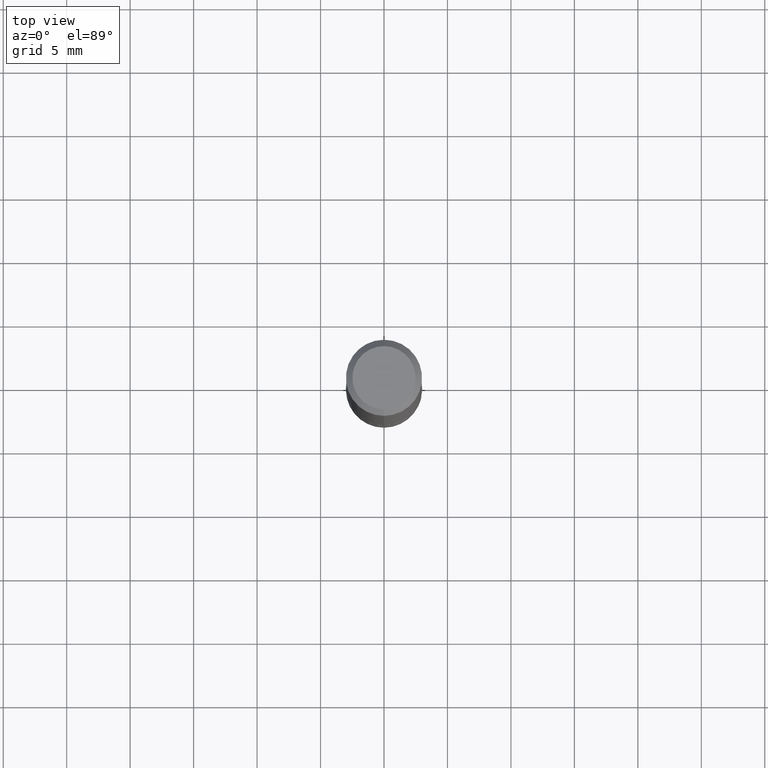
[diagram: clean part render]
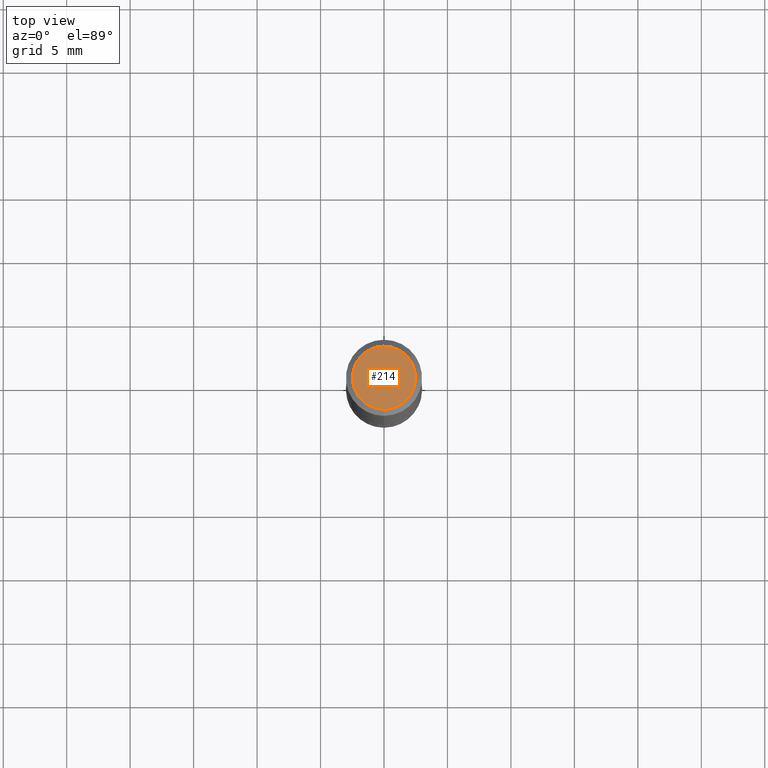
[diagram: same view with one face highlighted and labeled with its STEP entity id]
A machine part, top view. The second image highlights one B-rep face of the part: STEP entity #214.
In plain terms, the highlighted planar face has unit normal (0, -0, -1).
Its self-contained STEP definition (entity closure, byte-faithful):
#6 = EDGE_CURVE ( 'NONE', #373, #116, #262, .T. ) ;
#17 = EDGE_LOOP ( 'NONE', ( #159, #52 ) ) ;
#52 = ORIENTED_EDGE ( 'NONE', *, *, #320, .T. ) ;
#100 = CARTESIAN_POINT ( 'NONE',  ( -1.253201207292542527E-45, 1.789529766643190272E-31, 5.125000209750278552E-17 ) ) ;
#110 = AXIS2_PLACEMENT_3D ( 'NONE', #125, #406, #243 ) ;
#116 = VERTEX_POINT ( 'NONE', #165 ) ;
#125 = CARTESIAN_POINT ( 'NONE',  ( -1.253201207292542527E-45, 1.789529766643190272E-31, 5.125000209750278552E-17 ) ) ;
#159 = ORIENTED_EDGE ( 'NONE', *, *, #6, .T. ) ;
#165 = CARTESIAN_POINT ( 'NONE',  ( -7.416198335591022079E-16, -0.09809999999999997888, 3.937921736543131328E-16 ) ) ;
#197 = AXIS2_PLACEMENT_3D ( 'NONE', #100, #408, #234 ) ;
#214 = ADVANCED_FACE ( 'NONE', ( #410 ), #321, .F. ) ;
#223 = DIRECTION ( 'NONE',  ( 2.445270548298389327E-29, -3.491765255421105394E-15, -1.000000000000000000 ) ) ;
#234 = DIRECTION ( 'NONE',  ( -6.982962677686265922E-15, -1.000000000000000000, 3.491765255421105394E-15 ) ) ;
#243 = DIRECTION ( 'NONE',  ( -6.982962677686265922E-15, -1.000000000000000000, 3.491765255421105394E-15 ) ) ;
#262 = CIRCLE ( 'NONE', #110, 0.09809999999999997888 ) ;
#283 = DIRECTION ( 'NONE',  ( 6.982962677686265922E-15, 1.000000000000000000, -3.491765255421105394E-15 ) ) ;
#287 = CARTESIAN_POINT ( 'NONE',  ( 7.548582654578854574E-16, 0.09809999999999997888, -2.912921694593075864E-16 ) ) ;
#320 = EDGE_CURVE ( 'NONE', #116, #373, #402, .T. ) ;
#321 = PLANE ( 'NONE',  #401 ) ;
#373 = VERTEX_POINT ( 'NONE', #287 ) ;
#380 = CARTESIAN_POINT ( 'NONE',  ( 6.850286386810225537E-16, 0.09809999999999997888, -3.169171705080589607E-16 ) ) ;
#401 = AXIS2_PLACEMENT_3D ( 'NONE', #380, #223, #283 ) ;
#402 = CIRCLE ( 'NONE', #197, 0.09809999999999997888 ) ;
#406 = DIRECTION ( 'NONE',  ( -2.445270548298389607E-29, 3.491765255421105394E-15, 1.000000000000000000 ) ) ;
#408 = DIRECTION ( 'NONE',  ( -2.445270548298389607E-29, 3.491765255421105394E-15, 1.000000000000000000 ) ) ;
#410 = FACE_OUTER_BOUND ( 'NONE', #17, .T. ) ;